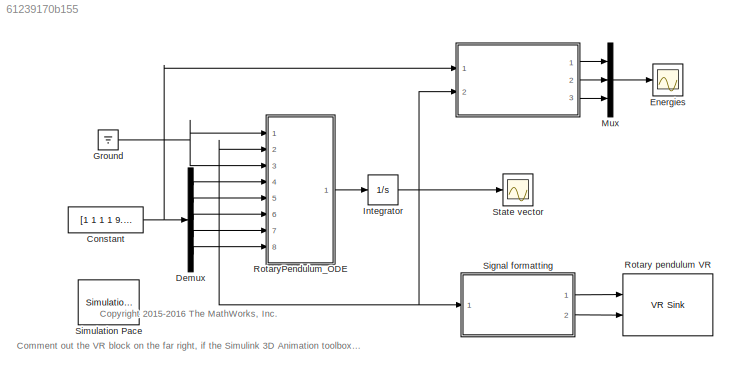
MODEL slx_61239170b155
KIND model
CONFIG AbsTol = auto
CONFIG EnableMultiTasking = on
CONFIG FixedStep = auto
CONFIG MaxStep = auto
CONFIG MinStep = auto
CONFIG RelTol = 1e-13
CONFIG SampleTimeConstraint = Unconstrained
CONFIG Solver = ode45
CONFIG SolverName = ode45
CONFIG StartTime = 0.0
CONFIG StopTime = 20
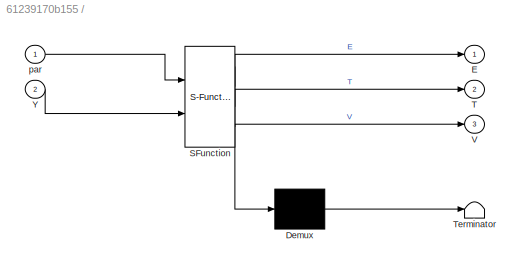
BLOCK [SubSystem]  
  ErrorFcn = Stateflow.Translate.translate
  PermitHierarchicalResolution = ExplicitOnly
  Ports = [2, 3]
  RequestExecContextInheritance = off
  SFBlockType = MATLAB Function
  TreatAsAtomicUnit = on
  Variant = off
BLOCK [Demux]  / Demux 
  Outputs = 1
  Ports = [1, 1]
BLOCK [S-Function]  / SFunction 
  EnableBusSupport = off
  FunctionName = sf_sfun
  PortCounts = [2 4]
  Ports = [2, 4]
  SFcnIsStateOwnerBlock = off
  SFunctionDeploymentMode = off
  Tag = Stateflow S-Function RotaryPendulum_SLdemo 1
BLOCK [Terminator]  / Terminator 
BLOCK [Outport]  /E
  IconDisplay = Port number
BLOCK [Outport]  /T
  IconDisplay = Port number
  Port = 2
BLOCK [Outport]  /V
  IconDisplay = Port number
  Port = 3
BLOCK [Inport]  /Y
  IconDisplay = Port number
  Port = 2
BLOCK [Inport]  /par
  IconDisplay = Port number
BLOCK [Constant] Constant
  Value = [1 1 1 1 9.81]
BLOCK [Demux] Demux
  DisplayOption = bar
  Outputs = 5
  Ports = [1, 5]
BLOCK [Scope] Energies
  NumInputPorts = 1
  Ports = [1]
  ScopeSpecificationString = Simulink.scopes.TimeScopeBlockCfg('CurrentConfiguration', extmgr.ConfigurationSet(extmgr.Configuration('Core','General UI',true),extmgr.Configuration('Core','Source UI',true),extmgr.Configuration('Sources','WiredSimulink',true,'DataLoggingVariableName','ScopeData1','DataLoggingLimitDataPoints',true,'DataLoggingSaveFormat','Array','DataLoggingDecimation','1','DataLoggingDecimateData',true),extmgr.C...<+1014ch>
BLOCK [Ground] Ground
BLOCK [Integrator] Integrator
  InitialCondition = [0 0 0.1 0]
  Ports = [1, 1]
BLOCK [Mux] Mux
  DisplayOption = bar
  Inputs = 3
  Ports = [3, 1]
BLOCK [Reference] Rotary pendulum VR  REF=vrlib/VR Sink
  InstantiateOnLoad = on
  Ports = [2]
  SourceBlock = vrlib/VR Sink
  SourceType = Virtual Reality Sink
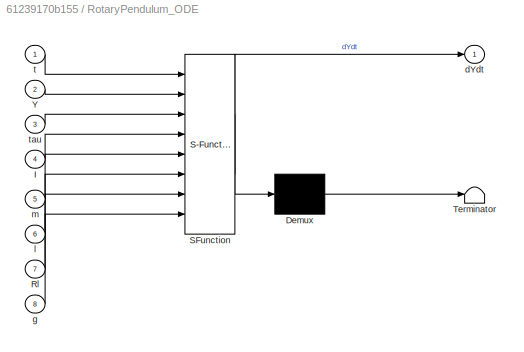
BLOCK [SubSystem] RotaryPendulum_ODE
  ErrorFcn = Stateflow.Translate.translate
  PermitHierarchicalResolution = ExplicitOnly
  Ports = [8, 1]
  RequestExecContextInheritance = off
  SFBlockType = MATLAB Function
  TreatAsAtomicUnit = on
  Variant = off
BLOCK [Demux] RotaryPendulum_ODE/ Demux 
  Outputs = 1
  Ports = [1, 1]
BLOCK [S-Function] RotaryPendulum_ODE/ SFunction 
  EnableBusSupport = off
  FunctionName = sf_sfun
  PortCounts = [8 2]
  Ports = [8, 2]
  SFcnIsStateOwnerBlock = off
  SFunctionDeploymentMode = off
  Tag = Stateflow S-Function RotaryPendulum_SLdemo 3
BLOCK [Terminator] RotaryPendulum_ODE/ Terminator 
BLOCK [Inport] RotaryPendulum_ODE/I
  IconDisplay = Port number
  Port = 4
BLOCK [Inport] RotaryPendulum_ODE/Rl
  IconDisplay = Port number
  Port = 7
BLOCK [Inport] RotaryPendulum_ODE/Y
  IconDisplay = Port number
  Port = 2
BLOCK [Outport] RotaryPendulum_ODE/dYdt
  IconDisplay = Port number
BLOCK [Inport] RotaryPendulum_ODE/g
  IconDisplay = Port number
  Port = 8
BLOCK [Inport] RotaryPendulum_ODE/l
  IconDisplay = Port number
  Port = 6
BLOCK [Inport] RotaryPendulum_ODE/m
  IconDisplay = Port number
  Port = 5
BLOCK [Inport] RotaryPendulum_ODE/t
  IconDisplay = Port number
BLOCK [Inport] RotaryPendulum_ODE/tau
  IconDisplay = Port number
  Port = 3
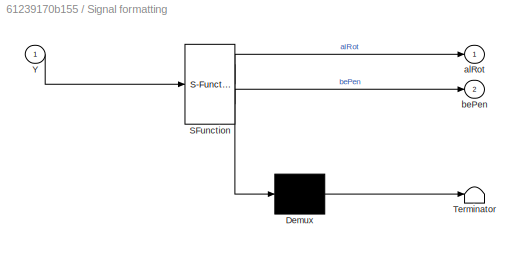
BLOCK [SubSystem] Signal formatting
  ErrorFcn = Stateflow.Translate.translate
  PermitHierarchicalResolution = ExplicitOnly
  Ports = [1, 2]
  RequestExecContextInheritance = off
  SFBlockType = MATLAB Function
  TreatAsAtomicUnit = on
  Variant = off
BLOCK [Demux] Signal formatting/ Demux 
  Outputs = 1
  Ports = [1, 1]
BLOCK [S-Function] Signal formatting/ SFunction 
  EnableBusSupport = off
  FunctionName = sf_sfun
  PortCounts = [1 3]
  Ports = [1, 3]
  SFcnIsStateOwnerBlock = off
  SFunctionDeploymentMode = off
  Tag = Stateflow S-Function RotaryPendulum_SLdemo 2
BLOCK [Terminator] Signal formatting/ Terminator 
BLOCK [Inport] Signal formatting/Y
  IconDisplay = Port number
BLOCK [Outport] Signal formatting/alRot
  IconDisplay = Port number
BLOCK [Outport] Signal formatting/bePen
  IconDisplay = Port number
  Port = 2
BLOCK [Reference] Simulation Pace  REF=aerolibanimutils/Simulation Pace
  AttributesFormatString = %<SimulationPace> sec/sec
  Ports = []
  SourceBlock = aerolibanimutils/Simulation Pace
  SourceType = Simulation Pace
BLOCK [Scope] State vector
  NumInputPorts = 1
  Ports = [1]
  ScopeSpecificationString = Simulink.scopes.TimeScopeBlockCfg('CurrentConfiguration', extmgr.ConfigurationSet(extmgr.Configuration('Core','General UI',true),extmgr.Configuration('Core','Source UI',true),extmgr.Configuration('Sources','WiredSimulink',true,'DataLoggingLimitDataPoints',true,'DataLoggingSaveFormat','Array','DataLoggingDecimation','1','DataLoggingDecimateData',true),extmgr.Configuration('Visuals','Time Domain',tr...<+975ch>
ANNOTATION (root): <copyright redacted>
ANNOTATION (root): Comment out the VR block on the far right, if the Simulink 3D Animation toolbox is not available on your system.
LINE  :1 -> Mux:1
LINE  :2 -> Mux:2
LINE  :3 -> Mux:3
NET Constant:1 ->  :1, Demux:1
LINE Demux:1 -> RotaryPendulum_ODE:4
LINE Demux:2 -> RotaryPendulum_ODE:5
LINE Demux:3 -> RotaryPendulum_ODE:6
LINE Demux:4 -> RotaryPendulum_ODE:7
LINE Demux:5 -> RotaryPendulum_ODE:8
NET Ground:1 -> RotaryPendulum_ODE:1, RotaryPendulum_ODE:3
NET Integrator:1 ->  :2, RotaryPendulum_ODE:2, Signal formatting:1, State vector:1
LINE Mux:1 -> Energies:1
LINE RotaryPendulum_ODE:1 -> Integrator:1
LINE Signal formatting:1 -> Rotary pendulum VR:1
LINE Signal formatting:2 -> Rotary pendulum VR:2
note: NET lines group one-source signal fan-out (src -> all destinations, sorted); 1:1 wires keep LINE
CHART  
 states=1 transitions=1
  STATE_LABEL 'eML_blk_kernel()'
  STATE_LABEL 'SCRIPT:\nfunction [E,T,V] = ComputeEnergies(par,Y)\n%#codegen\nal  = Y(1);\ndal = Y(2);\nbe  = Y(3);\ndbe = Y(4);\n\nI   = par(1);\nm   = par(2);\nl   = par(3);\nR   = par(4);\ng   = par(5);\n\nT   = I*dal.^2/2 + m/2*(R^2*dal.^2 + l^2*dal.^2.*sin(be).^2/3 + ...\n        l^2*dbe.^2/4 - R*l*dal.*dbe.*cos(be)) + m*l^2*dbe.^2/24;\nV   = m*g*l/2*cos(be);\nE   = T + V;\nend'
CHART Signal formatting states=1 transitions=1
  STATE_LABEL 'eML_blk_kernel()'
  STATE_LABEL 'SCRIPT:\nfunction [alRot, bePen] = FormatOUT(Y)\nal    = Y(1);\ndal   = Y(2);\nbe    = Y(3);\ndbe   = Y(4);\n\nalRot = [0; 1; 0; al];\nbePen = [0; 0; 1; be];\nend'
CHART RotaryPendulum_ODE states=1 transitions=1
  STATE_LABEL 'eML_blk_kernel()'
  STATE_LABEL 'SCRIPT:\nfunction dYdt = RotaryPendulum_ODE(t,Y,tau,I,m,l,Rl,g)\n%#codegen\n\n%    This function was generated by the Symbolic Math Toolbox version 7.1.\n%    19-Oct-2016 14:08:13\n\nt4 = Y(3);\nt2 = sin(t4);\nt3 = Rl.^2;\nt5 = cos(t4);\nt6 = Y(4);\nt7 = t5.^2;\nt8 = Y(2);\nt9 = l.^2;\nt10 = I.*1.2e1;\nt11 = m.*t3.*1.2e1;\nt12 = t2.^2;\nt13 = m.*t9.*t12.*4.0;\nt14 = t10+t11+t13-m.*t3.*t7.*9.0;\nt15 = 1.0./t14;\nt16 = ...<+389ch>'
